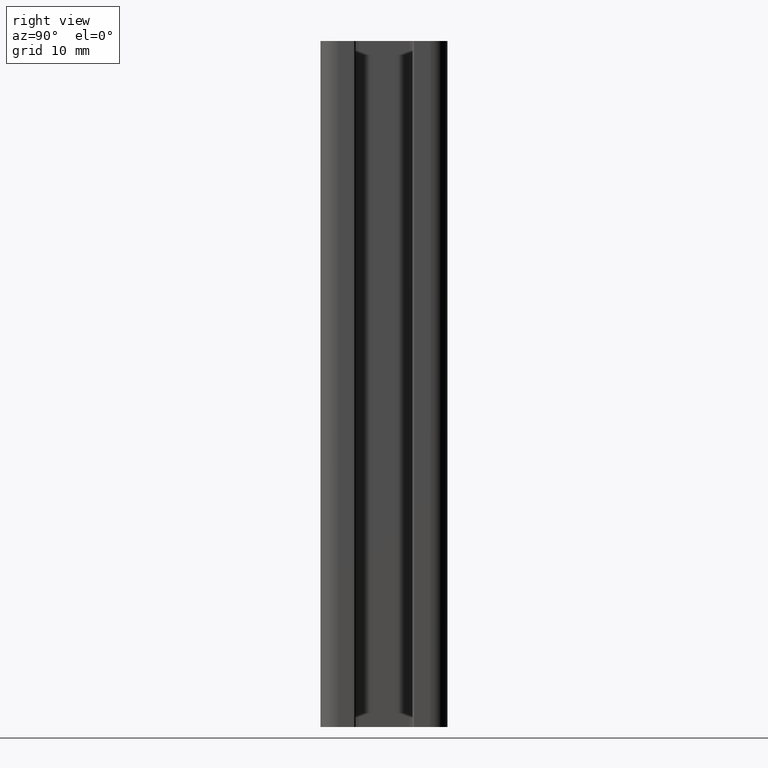
[diagram: clean part render]
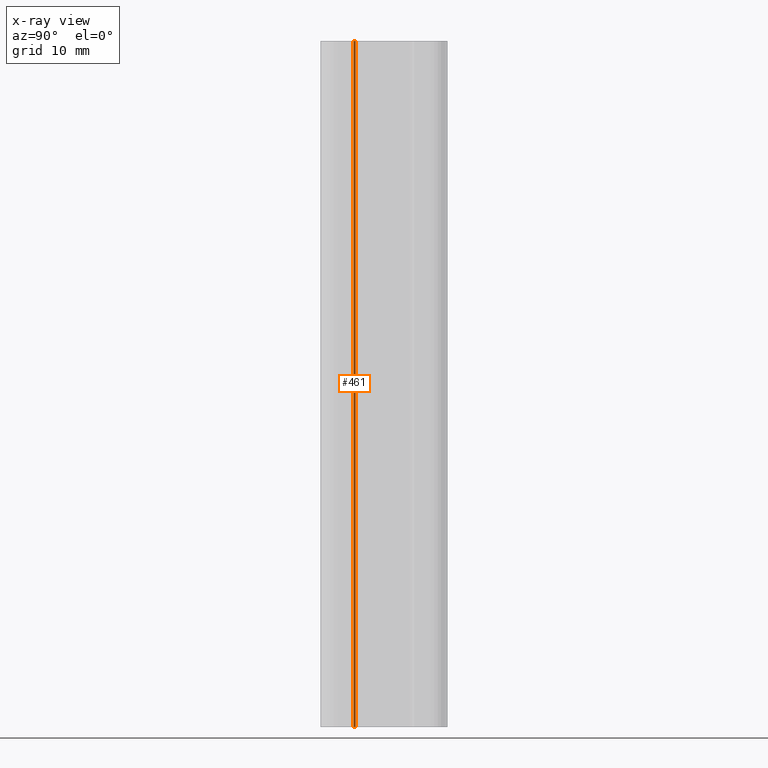
[diagram: x-ray — body ghosted, one internal face saturated and labeled with its STEP entity id]
A machine part, right view, then the same camera in x-ray: the body is ghosted and one INTERNAL B-rep face — a face not visible from any outside direction — is saturated and labeled: STEP entity #461.
In plain terms, the highlighted cylindrical surface (edge-blend (fillet) strip) has radius 0.3 mm, axis along (0, 0, 1).
Its self-contained STEP definition (entity closure, byte-faithful):
#29=LINE('',#687,#75);
#30=LINE('',#690,#76);
#75=VECTOR('',#546,100.);
#76=VECTOR('',#549,100.);
#125=FACE_OUTER_BOUND('',#151,.T.);
#151=EDGE_LOOP('',(#315,#316,#317,#318));
#179=CIRCLE('',#491,0.299999999999404);
#180=CIRCLE('',#492,0.299999999999404);
#201=VERTEX_POINT('',#683);
#202=VERTEX_POINT('',#684);
#203=VERTEX_POINT('',#686);
#204=VERTEX_POINT('',#688);
#247=EDGE_CURVE('',#201,#202,#179,.T.);
#248=EDGE_CURVE('',#201,#203,#29,.T.);
#249=EDGE_CURVE('',#204,#203,#180,.T.);
#250=EDGE_CURVE('',#204,#202,#30,.T.);
#315=ORIENTED_EDGE('',*,*,#247,.F.);
#316=ORIENTED_EDGE('',*,*,#248,.T.);
#317=ORIENTED_EDGE('',*,*,#249,.F.);
#318=ORIENTED_EDGE('',*,*,#250,.T.);
#450=CYLINDRICAL_SURFACE('',#490,0.299999999999404);
#461=ADVANCED_FACE('',(#125),#450,.T.);
#490=AXIS2_PLACEMENT_3D('',#682,#542,#543);
#491=AXIS2_PLACEMENT_3D('',#685,#544,#545);
#492=AXIS2_PLACEMENT_3D('',#689,#547,#548);
#542=DIRECTION('center_axis',(0.,0.,1.));
#543=DIRECTION('ref_axis',(-1.,2.22044604925467E-14,0.));
#544=DIRECTION('center_axis',(0.,0.,1.));
#545=DIRECTION('ref_axis',(-1.,2.22044604925467E-14,0.));
#546=DIRECTION('',(0.,0.,-1.));
#547=DIRECTION('center_axis',(0.,0.,-1.));
#548=DIRECTION('ref_axis',(-1.,2.22044604925467E-14,0.));
#549=DIRECTION('',(0.,0.,1.));
#682=CARTESIAN_POINT('Origin',(22.1999999999994,-4.44999999999941,0.));
#683=CARTESIAN_POINT('',(22.4999999999988,-4.44999999999942,100.));
#684=CARTESIAN_POINT('',(22.2,-4.15000000000001,100.));
#685=CARTESIAN_POINT('Origin',(22.1999999999994,-4.44999999999941,100.));
#686=CARTESIAN_POINT('',(22.4999999999988,-4.44999999999942,0.));
#687=CARTESIAN_POINT('',(22.5,-4.44999999999941,0.));
#688=CARTESIAN_POINT('',(22.2,-4.15000000000001,0.));
#689=CARTESIAN_POINT('Origin',(22.1999999999994,-4.44999999999941,0.));
#690=CARTESIAN_POINT('',(22.2,-4.15000000000001,0.));